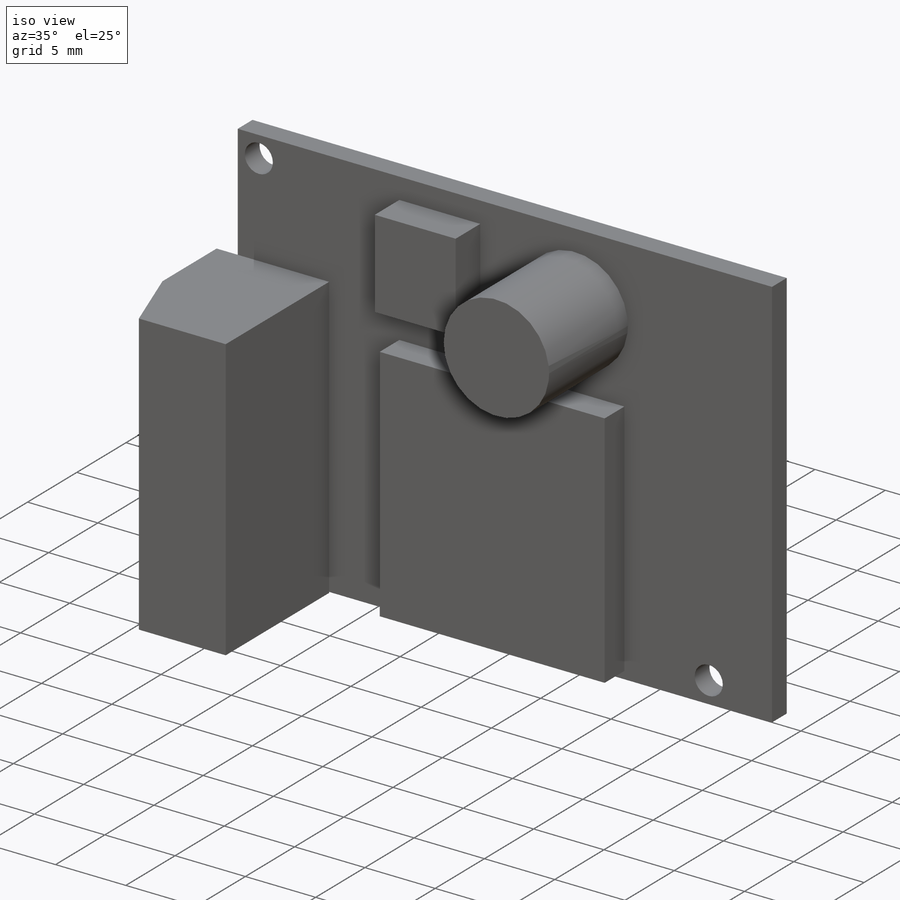
[diagram: iso view]
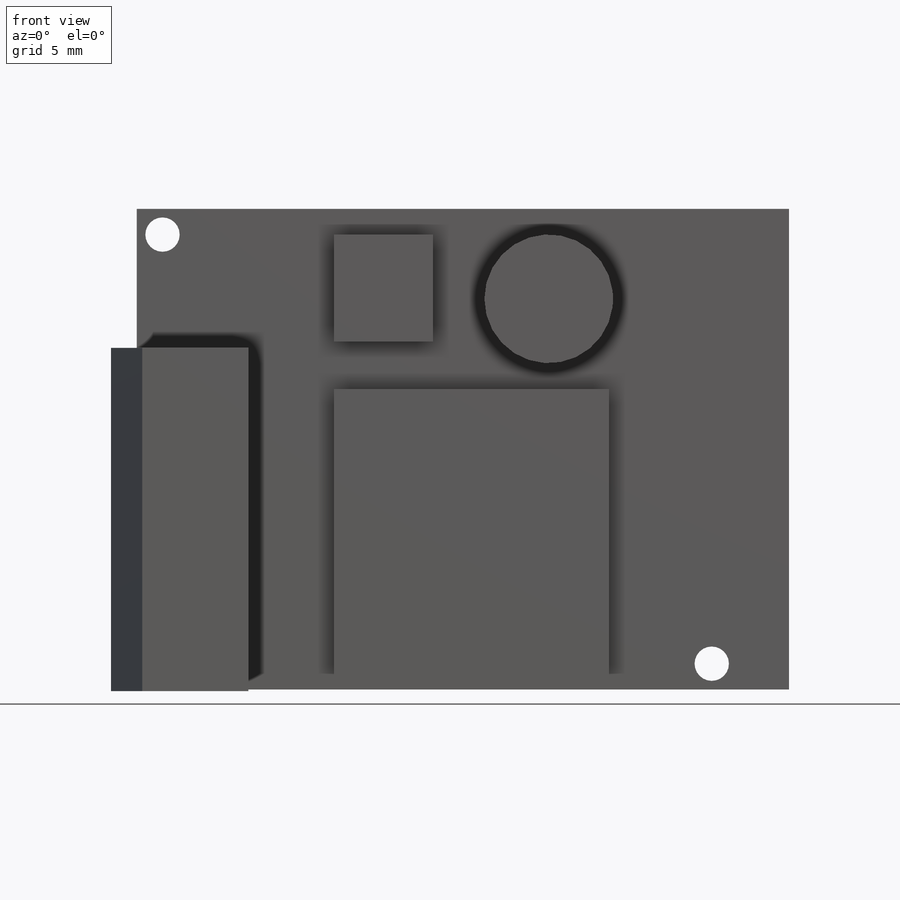
[diagram: front view]
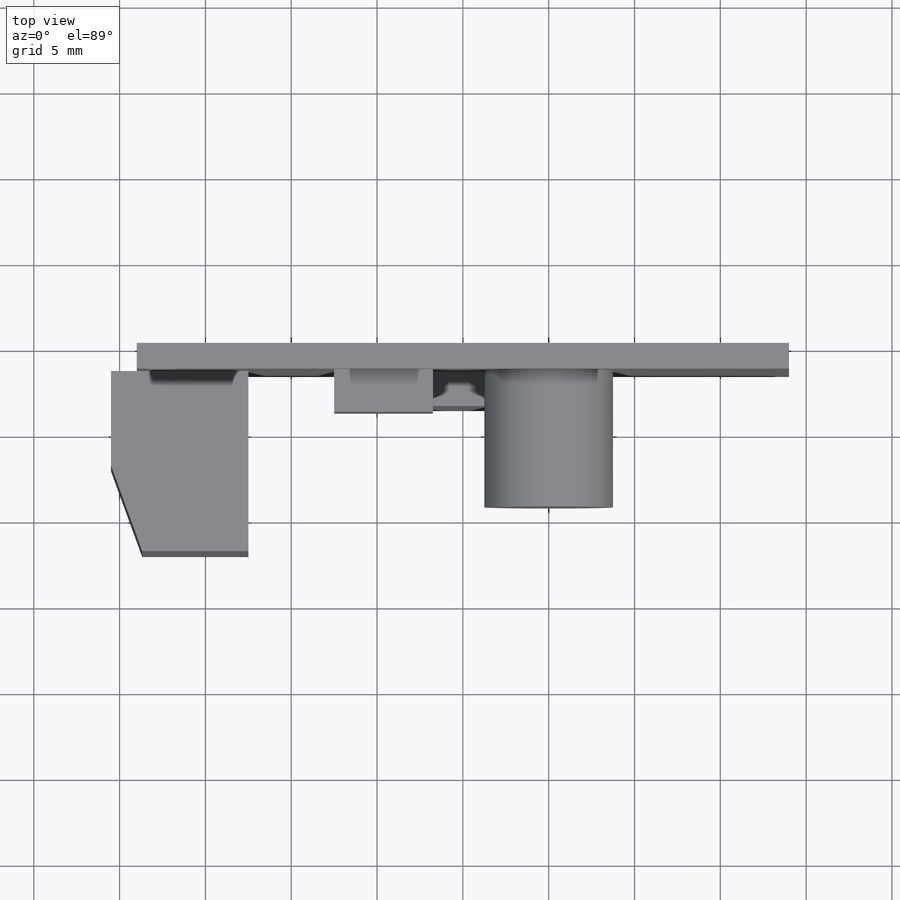
[diagram: top view]
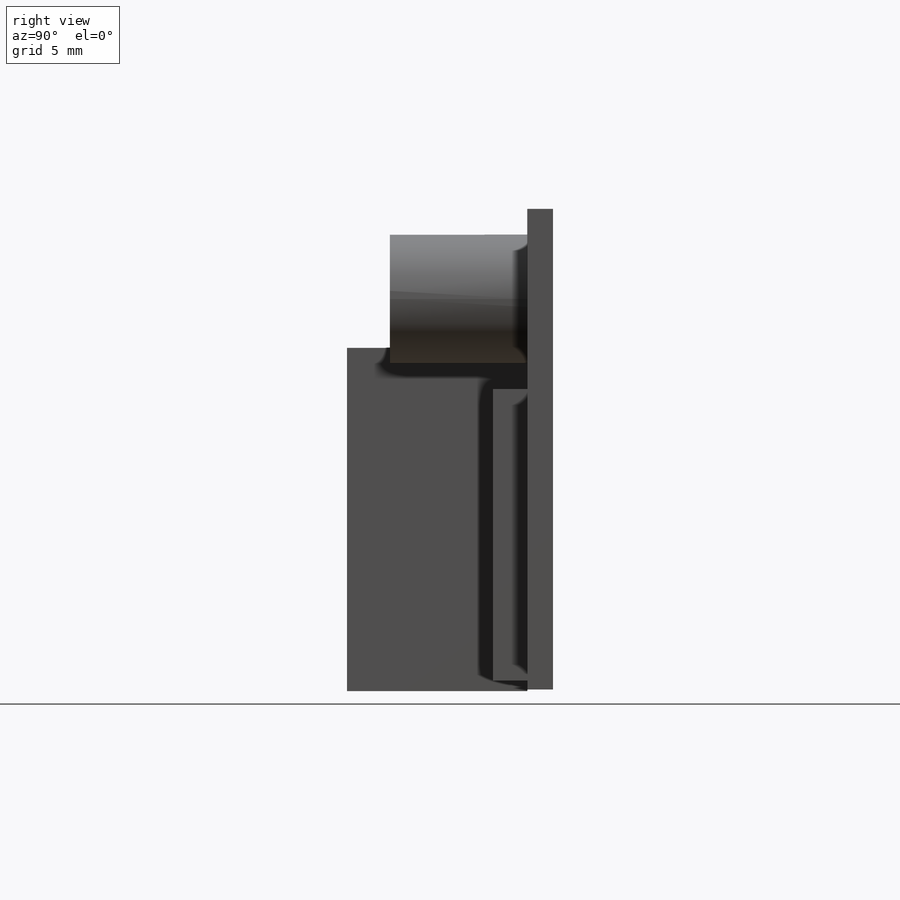
[diagram: right view]
SOLIDWORKS PART (.sldprt)
format: sldprt  version: not decoded by parser v0  size: 268,800 bytes
history: native  units: mm
features: sketch x7, extrude x5, cut_extrude x2, material x1, chamfer x1 (+13 scaffold rows collapsed)
feature tree (29):
  scaffold x13  (default folders/planes/origin — collapsed)
  material  "Material <not specified>"
  sketch  "Sketch1"
  extrude  "Boss-Extrude1"  Depth=1.5mm
  sketch  "Sketch2"  dims[D1=5.25mm]
  extrude  "Boss-Extrude2"  Depth=8mm
  sketch  "Sketch3"  dims[D1=6.25mm]
  extrude  "Boss-Extrude3"  Depth=2.5mm
  sketch  "Sketch4"  dims[D1=16.0mm]
  extrude  "Boss-Extrude4"  Depth=2mm
  sketch  "Sketch5"  dims[D1=4.5mm]
  cut_extrude  "Cut-Extrude1"  Depth=2mm
  sketch  "Sketch7"  dims[D1=1.5mm]
  cut_extrude  "Cut-Extrude3"  Depth=2mm
  sketch  "Sketch8"  dims[D1=20.0mm D2=8.0mm D3=1.5mm D4=0.1mm]
  extrude  "Boss-Extrude5"  Depth=10.5mm
  chamfer  "Chamfer1"  Distance=5mm Angle=20deg
decode coverage: 14 of 15 modeling features carry decoded parameters
note: suppression state not decoded; provenance and decode notes live in map.json
